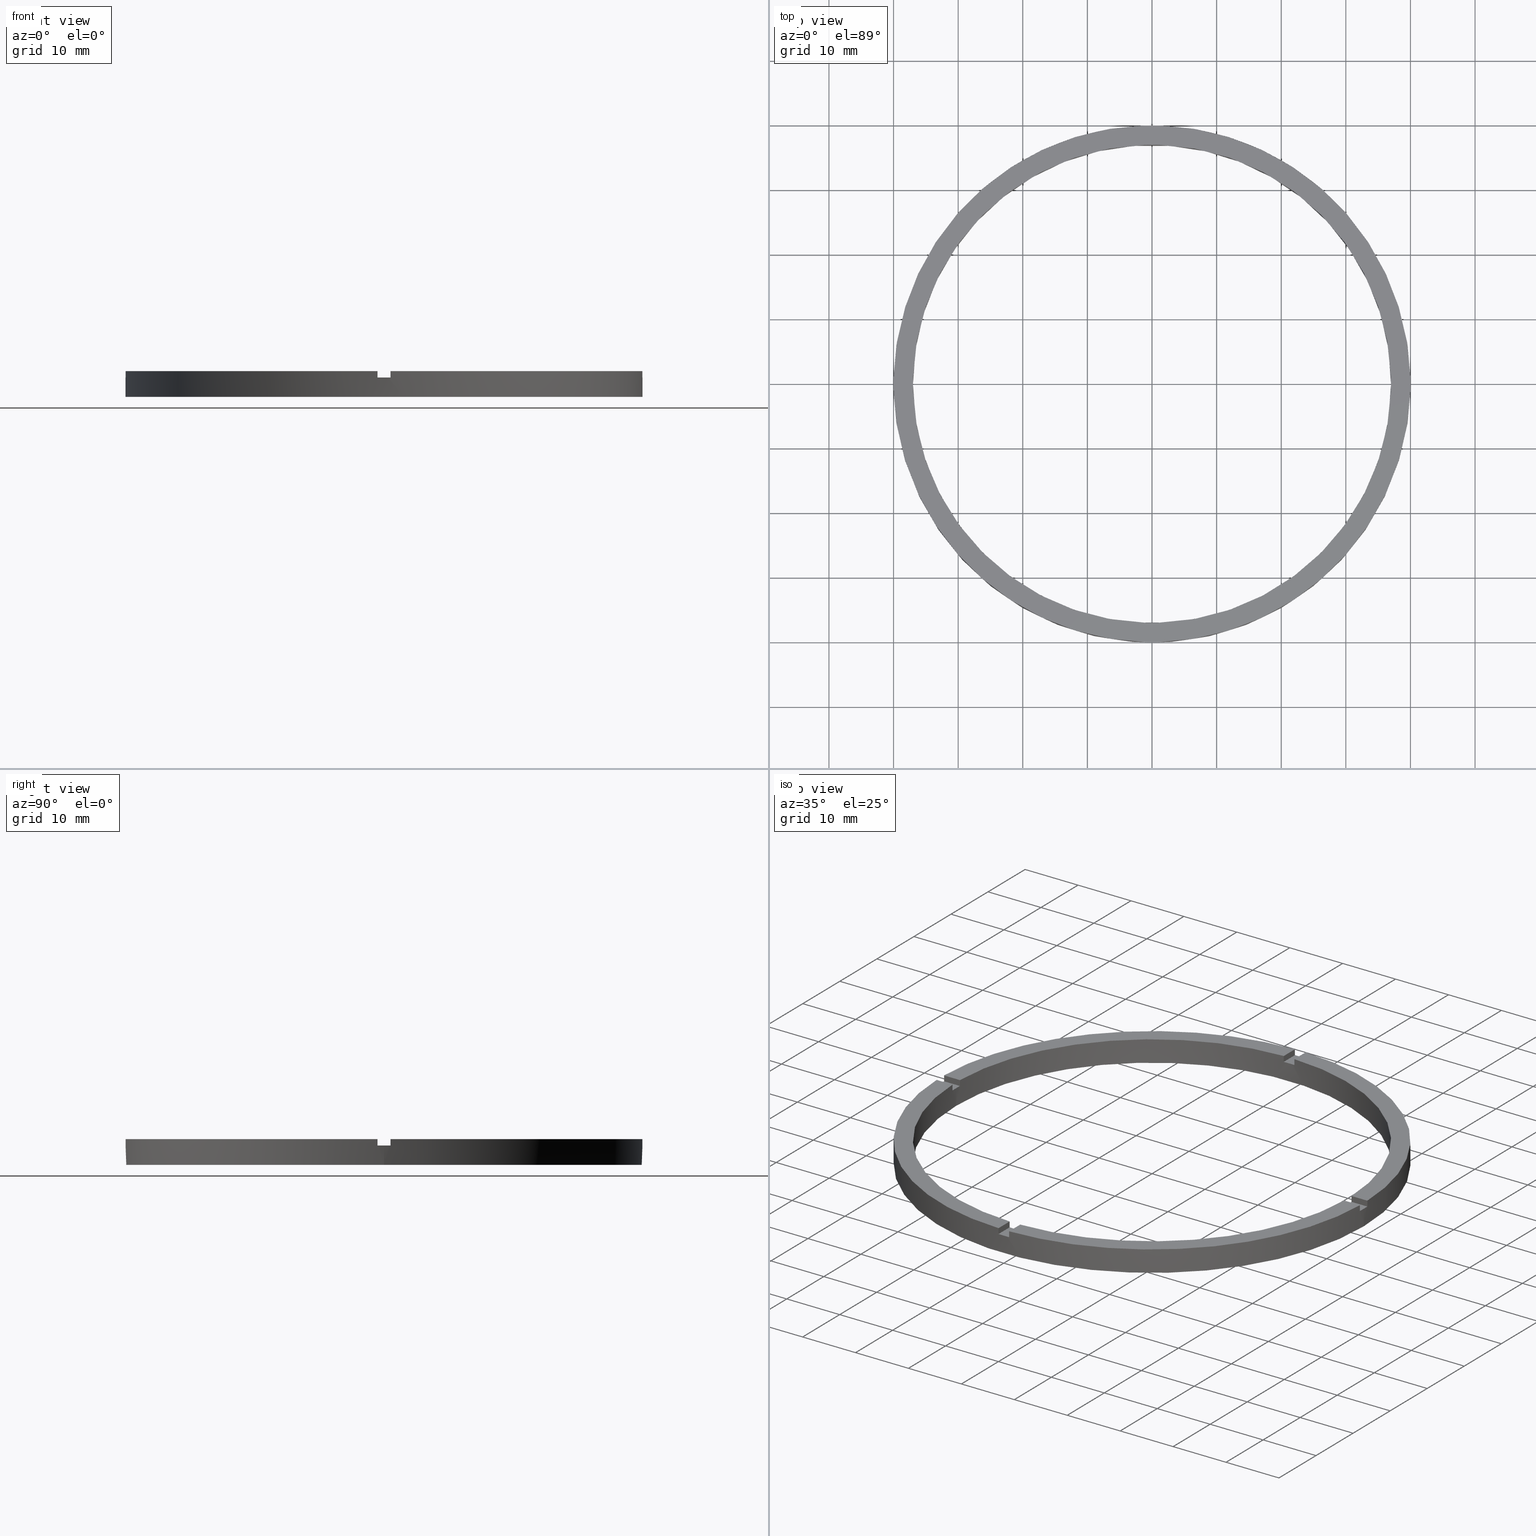
[diagram: canonical four-view strip — front | top / right | iso, engineering-drawing reading convention]
A machine part, canonical four-view strip (front | top / right | iso — engineering-drawing reading convention). The complete STEP part file that produces these views, byte-faithful:
ISO-10303-21;
HEADER;
FILE_DESCRIPTION (( 'STEP AP203' ),
    '1' );
FILE_NAME ('514164.step',
    '2024-12-26T02:43:45',
    ( 'MSI' ),
    ( '' ),
    'SwSTEP 2.0',
    'SolidWorks 2020',
    '' );
FILE_SCHEMA (( 'CONFIG_CONTROL_DESIGN' ));
ENDSEC;

DATA;
#1 = VECTOR ( 'NONE', #221, 1000.000000000000000 ) ;
#2 = AXIS2_PLACEMENT_3D ( 'NONE', #470, #280, #575 ) ;
#3 = SECURITY_CLASSIFICATION ( '', '', #547 ) ;
#4 = DIRECTION ( 'NONE',  ( -1.000000000000000000, 0.000000000000000000, 0.000000000000000000 ) ) ;
#5 = LINE ( 'NONE', #698, #540 ) ;
#6 = DIRECTION ( 'NONE',  ( 0.000000000000000000, 0.000000000000000000, 1.000000000000000000 ) ) ;
#7 = VECTOR ( 'NONE', #99, 1000.000000000000000 ) ;
#8 = VECTOR ( 'NONE', #17, 1000.000000000000000 ) ;
#9 = CARTESIAN_POINT ( 'NONE',  ( -30.00000000000018474, -1.000000000000026423, 3.000000000000000000 ) ) ;
#10 = CIRCLE ( 'NONE', #2, 37.00000000000000000 ) ;
#11 = CARTESIAN_POINT ( 'NONE',  ( 0.9999999999999744649, 30.00000000000000000, 3.000000000000000000 ) ) ;
#12 = CARTESIAN_POINT ( 'NONE',  ( 0.000000000000000000, 0.000000000000000000, 3.000000000000000000 ) ) ;
#13 = CIRCLE ( 'NONE', #508, 40.00000000000000000 ) ;
#14 = CARTESIAN_POINT ( 'NONE',  ( 0.000000000000000000, 0.000000000000000000, 4.000000000000000000 ) ) ;
#15 = VECTOR ( 'NONE', #477, 1000.000000000000000 ) ;
#16 = CARTESIAN_POINT ( 'NONE',  ( 0.000000000000000000, 0.000000000000000000, 3.000000000000000000 ) ) ;
#17 = DIRECTION ( 'NONE',  ( 0.000000000000000000, 0.000000000000000000, 1.000000000000000000 ) ) ;
#18 = VECTOR ( 'NONE', #246, 1000.000000000000000 ) ;
#19 = DIRECTION ( 'NONE',  ( 0.000000000000000000, 0.000000000000000000, 1.000000000000000000 ) ) ;
#20 = DIRECTION ( 'NONE',  ( 1.000000000000000000, 0.000000000000000000, 0.000000000000000000 ) ) ;
#21 = DIRECTION ( 'NONE',  ( 0.000000000000000000, 0.000000000000000000, 1.000000000000000000 ) ) ;
#22 = VERTEX_POINT ( 'NONE', #83 ) ;
#23 = LINE ( 'NONE', #57, #18 ) ;
#24 = EDGE_CURVE ( 'NONE', #635, #435, #291, .T. ) ;
#25 = ORIENTED_EDGE ( 'NONE', *, *, #43, .F. ) ;
#26 = CARTESIAN_POINT ( 'NONE',  ( 0.000000000000000000, 0.000000000000000000, 3.000000000000000000 ) ) ;
#27 = CARTESIAN_POINT ( 'NONE',  ( 0.000000000000000000, 0.000000000000000000, 3.000000000000000000 ) ) ;
#28 = CARTESIAN_POINT ( 'NONE',  ( 0.000000000000000000, 0.000000000000000000, 3.000000000000000000 ) ) ;
#29 = DIRECTION ( 'NONE',  ( 0.000000000000000000, 0.000000000000000000, 1.000000000000000000 ) ) ;
#30 = CIRCLE ( 'NONE', #532, 37.00000000000000000 ) ;
#31 = APPLICATION_CONTEXT ( 'configuration controlled 3d designs of mechanical parts and assemblies' ) ;
#32 = CARTESIAN_POINT ( 'NONE',  ( 0.9999999999999744649, 39.98749804626441318, 4.000000000000000000 ) ) ;
#33 = CARTESIAN_POINT ( 'NONE',  ( -1.000000000000025535, 36.98648401781385786, 4.000000000000000000 ) ) ;
#34 = EDGE_CURVE ( 'NONE', #22, #228, #775, .T. ) ;
#35 = AXIS2_PLACEMENT_3D ( 'NONE', #174, #38, #354 ) ;
#36 = ORIENTED_EDGE ( 'NONE', *, *, #211, .F. ) ;
#37 = PERSON_AND_ORGANIZATION_ROLE ( 'design_supplier' ) ;
#38 = DIRECTION ( 'NONE',  ( 0.000000000000000000, 0.000000000000000000, 1.000000000000000000 ) ) ;
#39 = DESIGN_CONTEXT ( 'detailed design', #31, 'design' ) ;
#40 = DIRECTION ( 'NONE',  ( -0.000000000000000000, -0.000000000000000000, -1.000000000000000000 ) ) ;
#41 = AXIS2_PLACEMENT_3D ( 'NONE', #704, #618, #119 ) ;
#42 = CC_DESIGN_APPROVAL ( #213, ( #3 ) ) ;
#43 = EDGE_CURVE ( 'NONE', #671, #459, #5, .T. ) ;
#44 = CC_DESIGN_PERSON_AND_ORGANIZATION_ASSIGNMENT ( #107, #178, ( #262 ) ) ;
#45 = ORIENTED_EDGE ( 'NONE', *, *, #393, .T. ) ;
#46 = VERTEX_POINT ( 'NONE', #318 ) ;
#47 = ORIENTED_EDGE ( 'NONE', *, *, #146, .F. ) ;
#48 = ORIENTED_EDGE ( 'NONE', *, *, #177, .F. ) ;
#49 = ADVANCED_FACE ( 'NONE', ( #271 ), #165, .F. ) ;
#50 = DIRECTION ( 'NONE',  ( -0.000000000000000000, -1.000000000000000000, -0.000000000000000000 ) ) ;
#51 = AXIS2_PLACEMENT_3D ( 'NONE', #93, #6, #63 ) ;
#52 = ORIENTED_EDGE ( 'NONE', *, *, #579, .F. ) ;
#53 = APPROVAL ( #173, 'δָ��' ) ;
#54 = EDGE_LOOP ( 'NONE', ( #656, #510 ) ) ;
#55 = ORIENTED_EDGE ( 'NONE', *, *, #654, .F. ) ;
#56 = VERTEX_POINT ( 'NONE', #746 ) ;
#57 = CARTESIAN_POINT ( 'NONE',  ( -39.98749804626441318, -1.000000000000028422, 4.000000000000000000 ) ) ;
#58 = EDGE_CURVE ( 'NONE', #600, #46, #281, .T. ) ;
#59 = ADVANCED_FACE ( 'NONE', ( #537 ), #545, .F. ) ;
#60 = DIRECTION ( 'NONE',  ( -0.000000000000000000, -0.000000000000000000, -1.000000000000000000 ) ) ;
#61 = DIRECTION ( 'NONE',  ( -1.000000000000000000, 0.000000000000000000, 0.000000000000000000 ) ) ;
#62 = CARTESIAN_POINT ( 'NONE',  ( 0.9999999999999744649, 39.98749804626441318, 3.000000000000000000 ) ) ;
#63 = DIRECTION ( 'NONE',  ( 1.000000000000000000, 0.000000000000000000, -0.000000000000000000 ) ) ;
#64 = DATE_AND_TIME ( #614, #703 ) ;
#65 = ORIENTED_EDGE ( 'NONE', *, *, #543, .F. ) ;
#66 = DIRECTION ( 'NONE',  ( 1.000000000000000000, 0.000000000000000000, 0.000000000000000000 ) ) ;
#67 = COORDINATED_UNIVERSAL_TIME_OFFSET ( 8, 0, .AHEAD. ) ;
#68 = CARTESIAN_POINT ( 'NONE',  ( 0.9999999999999744649, 36.98648401781385786, 3.000000000000000000 ) ) ;
#69 = DIRECTION ( 'NONE',  ( 0.000000000000000000, 0.000000000000000000, 1.000000000000000000 ) ) ;
#70 = EDGE_CURVE ( 'NONE', #137, #160, #294, .T. ) ;
#71 = DIRECTION ( 'NONE',  ( 0.000000000000000000, 0.000000000000000000, 1.000000000000000000 ) ) ;
#72 = AXIS2_PLACEMENT_3D ( 'NONE', #323, #472, #489 ) ;
#73 = VERTEX_POINT ( 'NONE', #530 ) ;
#74 = CARTESIAN_POINT ( 'NONE',  ( 0.000000000000000000, 0.000000000000000000, 3.000000000000000000 ) ) ;
#75 = ORIENTED_EDGE ( 'NONE', *, *, #273, .T. ) ;
#76 = CALENDAR_DATE ( 2024, 26, 12 ) ;
#77 = ORIENTED_EDGE ( 'NONE', *, *, #24, .F. ) ;
#78 = PLANE ( 'NONE',  #315 ) ;
#79 = APPROVAL_DATE_TIME ( #597, #213 ) ;
#80 = SHAPE_DEFINITION_REPRESENTATION ( #781, #591 ) ;
#81 = EDGE_LOOP ( 'NONE', ( #343, #711, #25, #426 ) ) ;
#82 = DIRECTION ( 'NONE',  ( 6.505213034913025371E-17, -1.000000000000000000, 0.000000000000000000 ) ) ;
#83 = CARTESIAN_POINT ( 'NONE',  ( 39.98749804626441318, 0.9999999999998430145, 3.000000000000000000 ) ) ;
#84 = CLOSED_SHELL ( 'NONE', ( #185, #123, #116, #599, #312, #313, #385, #733, #59, #767, #245, #442, #506, #293, #719, #650, #49, #727, #135, #253, #189 ) ) ;
#85 = FACE_OUTER_BOUND ( 'NONE', #458, .T. ) ;
#86 = ORIENTED_EDGE ( 'NONE', *, *, #587, .F. ) ;
#87 = CARTESIAN_POINT ( 'NONE',  ( -1.000000000000159206, -39.98749804626440607, 4.000000000000000000 ) ) ;
#88 = CC_DESIGN_PERSON_AND_ORGANIZATION_ASSIGNMENT ( #712, #105, ( #534 ) ) ;
#89 = CARTESIAN_POINT ( 'NONE',  ( -40.00000000000000000, 0.000000000000000000, 4.000000000000000000 ) ) ;
#90 = EDGE_LOOP ( 'NONE', ( #647, #392, #337, #407 ) ) ;
#91 = ORIENTED_EDGE ( 'NONE', *, *, #117, .F. ) ;
#92 = VECTOR ( 'NONE', #346, 1000.000000000000000 ) ;
#93 = CARTESIAN_POINT ( 'NONE',  ( 0.000000000000000000, 0.000000000000000000, 4.000000000000000000 ) ) ;
#94 = CARTESIAN_POINT ( 'NONE',  ( -30.00000000000018474, -1.000000000000026423, 3.000000000000000000 ) ) ;
#95 = DIRECTION ( 'NONE',  ( -0.000000000000000000, -0.000000000000000000, -1.000000000000000000 ) ) ;
#96 = CIRCLE ( 'NONE', #655, 40.00000000000000000 ) ;
#97 = PERSON_AND_ORGANIZATION ( #406, #375 ) ;
#98 = LOCAL_TIME ( 10, 43, 45.00000000000000000, #611 ) ;
#99 = DIRECTION ( 'NONE',  ( -0.000000000000000000, -0.000000000000000000, -1.000000000000000000 ) ) ;
#100 = EDGE_CURVE ( 'NONE', #203, #660, #267, .T. ) ;
#101 = EDGE_CURVE ( 'NONE', #598, #203, #776, .T. ) ;
#102 = PERSON_AND_ORGANIZATION ( #406, #375 ) ;
#103 = VECTOR ( 'NONE', #151, 1000.000000000000000 ) ;
#104 = CIRCLE ( 'NONE', #627, 40.00000000000000000 ) ;
#105 = PERSON_AND_ORGANIZATION_ROLE ( 'creator' ) ;
#106 = CARTESIAN_POINT ( 'NONE',  ( -36.98648401781385786, -1.000000000000027756, 3.000000000000000000 ) ) ;
#107 = PERSON_AND_ORGANIZATION ( #406, #375 ) ;
#108 = CIRCLE ( 'NONE', #248, 37.00000000000000000 ) ;
#109 = DATE_AND_TIME ( #369, #98 ) ;
#110 = DIRECTION ( 'NONE',  ( 1.000000000000000000, 0.000000000000000000, 0.000000000000000000 ) ) ;
#111 = VECTOR ( 'NONE', #144, 1000.000000000000000 ) ;
#112 = APPROVAL_STATUS ( 'not_yet_approved' ) ;
#113 = CARTESIAN_POINT ( 'NONE',  ( -1.000000000000159650, -36.98648401781385076, 3.000000000000000000 ) ) ;
#114 = CARTESIAN_POINT ( 'NONE',  ( 0.9999999999999744649, 36.98648401781385786, 4.000000000000000000 ) ) ;
#115 = EDGE_LOOP ( 'NONE', ( #501, #155, #350, #486, #219, #677, #171, #455, #164, #366, #723, #594 ) ) ;
#116 = ADVANCED_FACE ( 'NONE', ( #546 ), #338, .T. ) ;
#117 = EDGE_CURVE ( 'NONE', #383, #673, #10, .T. ) ;
#118 = ORIENTED_EDGE ( 'NONE', *, *, #639, .T. ) ;
#119 = DIRECTION ( 'NONE',  ( 1.000000000000000000, 0.000000000000000000, -0.000000000000000000 ) ) ;
#120 = ORIENTED_EDGE ( 'NONE', *, *, #240, .F. ) ;
#121 = ORIENTED_EDGE ( 'NONE', *, *, #706, .F. ) ;
#122 = DIRECTION ( 'NONE',  ( 0.000000000000000000, 0.000000000000000000, 1.000000000000000000 ) ) ;
#123 = ADVANCED_FACE ( 'NONE', ( #780 ), #282, .T. ) ;
#124 = CARTESIAN_POINT ( 'NONE',  ( -30.00000000000018474, 0.9999999999999735767, 3.000000000000000000 ) ) ;
#125 = ORIENTED_EDGE ( 'NONE', *, *, #663, .F. ) ;
#126 = ORIENTED_EDGE ( 'NONE', *, *, #519, .T. ) ;
#127 = AXIS2_PLACEMENT_3D ( 'NONE', #218, #329, #209 ) ;
#128 = ORIENTED_EDGE ( 'NONE', *, *, #24, .T. ) ;
#129 = EDGE_CURVE ( 'NONE', #160, #459, #782, .T. ) ;
#130 = DIRECTION ( 'NONE',  ( 0.000000000000000000, 0.000000000000000000, 1.000000000000000000 ) ) ;
#131 = FACE_OUTER_BOUND ( 'NONE', #356, .T. ) ;
#132 = VECTOR ( 'NONE', #464, 1000.000000000000000 ) ;
#133 = ORIENTED_EDGE ( 'NONE', *, *, #310, .T. ) ;
#134 = VERTEX_POINT ( 'NONE', #176 ) ;
#135 = ADVANCED_FACE ( 'NONE', ( #277 ), #443, .F. ) ;
#136 = VECTOR ( 'NONE', #376, 1000.000000000000000 ) ;
#137 = VERTEX_POINT ( 'NONE', #648 ) ;
#138 = FACE_OUTER_BOUND ( 'NONE', #441, .T. ) ;
#139 = DIRECTION ( 'NONE',  ( -1.000000000000000000, -1.951563910473907735E-16, 0.000000000000000000 ) ) ;
#140 = DIRECTION ( 'NONE',  ( 0.000000000000000000, 0.000000000000000000, 1.000000000000000000 ) ) ;
#141 = ORIENTED_EDGE ( 'NONE', *, *, #34, .T. ) ;
#142 = FACE_BOUND ( 'NONE', #738, .T. ) ;
#143 = DIRECTION ( 'NONE',  ( 1.000000000000000000, 1.951563910473907735E-16, 0.000000000000000000 ) ) ;
#144 = DIRECTION ( 'NONE',  ( -0.000000000000000000, -0.000000000000000000, -1.000000000000000000 ) ) ;
#145 = AXIS2_PLACEMENT_3D ( 'NONE', #757, #82, #220 ) ;
#146 = EDGE_CURVE ( 'NONE', #657, #199, #541, .T. ) ;
#147 = CARTESIAN_POINT ( 'NONE',  ( 0.000000000000000000, 0.000000000000000000, 4.000000000000000000 ) ) ;
#148 = DIRECTION ( 'NONE',  ( -1.000000000000000000, -6.505213034913025371E-17, -0.000000000000000000 ) ) ;
#149 = LINE ( 'NONE', #726, #162 ) ;
#150 = ORIENTED_EDGE ( 'NONE', *, *, #181, .F. ) ;
#151 = DIRECTION ( 'NONE',  ( -1.000000000000000000, -1.951563910473907735E-16, 0.000000000000000000 ) ) ;
#152 = CARTESIAN_POINT ( 'NONE',  ( 0.000000000000000000, 0.000000000000000000, 4.000000000000000000 ) ) ;
#153 = DIRECTION ( 'NONE',  ( 1.000000000000000000, 0.000000000000000000, 0.000000000000000000 ) ) ;
#154 = CARTESIAN_POINT ( 'NONE',  ( -36.98648401781385786, 0.9999999999999722444, 4.000000000000000000 ) ) ;
#155 = ORIENTED_EDGE ( 'NONE', *, *, #771, .T. ) ;
#156 = PLANE ( 'NONE',  #35 ) ;
#157 = EDGE_CURVE ( 'NONE', #172, #134, #542, .T. ) ;
#158 = LINE ( 'NONE', #428, #132 ) ;
#159 = AXIS2_PLACEMENT_3D ( 'NONE', #217, #528, #754 ) ;
#160 = VERTEX_POINT ( 'NONE', #741 ) ;
#161 = CARTESIAN_POINT ( 'NONE',  ( 37.00000000000000000, 4.531193156845206793E-15, 0.000000000000000000 ) ) ;
#162 = VECTOR ( 'NONE', #297, 1000.000000000000000 ) ;
#163 = DIRECTION ( 'NONE',  ( 1.000000000000000000, 1.301042606982605074E-16, 0.000000000000000000 ) ) ;
#164 = ORIENTED_EDGE ( 'NONE', *, *, #571, .F. ) ;
#165 = PLANE ( 'NONE',  #145 ) ;
#166 = DIRECTION ( 'NONE',  ( 1.000000000000000000, 1.951563910473907735E-16, -0.000000000000000000 ) ) ;
#167 = AXIS2_PLACEMENT_3D ( 'NONE', #713, #513, #732 ) ;
#168 = ORIENTED_EDGE ( 'NONE', *, *, #601, .T. ) ;
#169 = DIRECTION ( 'NONE',  ( 0.000000000000000000, 0.000000000000000000, 1.000000000000000000 ) ) ;
#170 = CIRCLE ( 'NONE', #603, 37.00000000000000000 ) ;
#171 = ORIENTED_EDGE ( 'NONE', *, *, #601, .F. ) ;
#172 = VERTEX_POINT ( 'NONE', #745 ) ;
#173 = APPROVAL_STATUS ( 'not_yet_approved' ) ;
#174 = CARTESIAN_POINT ( 'NONE',  ( 0.000000000000000000, 0.000000000000000000, 4.000000000000000000 ) ) ;
#175 = VECTOR ( 'NONE', #565, 1000.000000000000000 ) ;
#176 = CARTESIAN_POINT ( 'NONE',  ( 39.98749804626440607, -1.000000000000156986, 4.000000000000000000 ) ) ;
#177 = EDGE_CURVE ( 'NONE', #490, #608, #287, .T. ) ;
#178 = PERSON_AND_ORGANIZATION_ROLE ( 'design_owner' ) ;
#179 = CARTESIAN_POINT ( 'NONE',  ( 0.000000000000000000, 0.000000000000000000, 0.000000000000000000 ) ) ;
#180 = EDGE_CURVE ( 'NONE', #657, #731, #548, .T. ) ;
#181 = EDGE_CURVE ( 'NONE', #598, #608, #288, .T. ) ;
#182 = CARTESIAN_POINT ( 'NONE',  ( 0.000000000000000000, 0.000000000000000000, 3.000000000000000000 ) ) ;
#183 = EDGE_CURVE ( 'NONE', #482, #22, #13, .T. ) ;
#184 = AXIS2_PLACEMENT_3D ( 'NONE', #689, #401, #692 ) ;
#185 = ADVANCED_FACE ( 'NONE', ( #551 ), #305, .F. ) ;
#186 = CALENDAR_DATE ( 2024, 26, 12 ) ;
#187 = ORIENTED_EDGE ( 'NONE', *, *, #515, .T. ) ;
#188 = APPROVAL_DATE_TIME ( #485, #53 ) ;
#189 = ADVANCED_FACE ( 'NONE', ( #309 ), #202, .T. ) ;
#190 = ORIENTED_EDGE ( 'NONE', *, *, #579, .T. ) ;
#191 = CALENDAR_DATE ( 2024, 26, 12 ) ;
#192 = ORIENTED_EDGE ( 'NONE', *, *, #772, .T. ) ;
#193 = APPROVAL_PERSON_ORGANIZATION ( #710, #53, #538 ) ;
#194 = AXIS2_PLACEMENT_3D ( 'NONE', #124, #445, #139 ) ;
#195 = CC_DESIGN_DATE_AND_TIME_ASSIGNMENT ( #64, #353, ( #3 ) ) ;
#196 = APPROVAL ( #112, 'δָ��' ) ;
#197 = ORIENTED_EDGE ( 'NONE', *, *, #602, .F. ) ;
#198 = COORDINATED_UNIVERSAL_TIME_OFFSET ( 8, 0, .AHEAD. ) ;
#199 = VERTEX_POINT ( 'NONE', #259 ) ;
#200 = PERSON_AND_ORGANIZATION ( #406, #375 ) ;
#201 = DIRECTION ( 'NONE',  ( 1.000000000000000000, 0.000000000000000000, 0.000000000000000000 ) ) ;
#202 = PLANE ( 'NONE',  #41 ) ;
#203 = VERTEX_POINT ( 'NONE', #317 ) ;
#204 = DIRECTION ( 'NONE',  ( -1.000000000000000000, 0.000000000000000000, 0.000000000000000000 ) ) ;
#205 = ORIENTED_EDGE ( 'NONE', *, *, #669, .T. ) ;
#206 = EDGE_LOOP ( 'NONE', ( #419, #341, #128, #197 ) ) ;
#207 = DIRECTION ( 'NONE',  ( -0.000000000000000000, -0.000000000000000000, -1.000000000000000000 ) ) ;
#208 = DIRECTION ( 'NONE',  ( 0.000000000000000000, 0.000000000000000000, 1.000000000000000000 ) ) ;
#209 = DIRECTION ( 'NONE',  ( 1.000000000000000000, 0.000000000000000000, 0.000000000000000000 ) ) ;
#210 = ORIENTED_EDGE ( 'NONE', *, *, #499, .F. ) ;
#211 = EDGE_CURVE ( 'NONE', #388, #199, #30, .T. ) ;
#212 = DIRECTION ( 'NONE',  ( 0.000000000000000000, 0.000000000000000000, 1.000000000000000000 ) ) ;
#213 = APPROVAL ( #716, 'δָ��' ) ;
#214 = ORIENTED_EDGE ( 'NONE', *, *, #58, .F. ) ;
#215 = DIRECTION ( 'NONE',  ( 1.000000000000000000, 0.000000000000000000, -0.000000000000000000 ) ) ;
#216 = ORIENTED_EDGE ( 'NONE', *, *, #157, .T. ) ;
#217 = CARTESIAN_POINT ( 'NONE',  ( 0.000000000000000000, 0.000000000000000000, 3.000000000000000000 ) ) ;
#218 = CARTESIAN_POINT ( 'NONE',  ( 0.000000000000000000, 0.000000000000000000, 3.000000000000000000 ) ) ;
#219 = ORIENTED_EDGE ( 'NONE', *, *, #299, .F. ) ;
#220 = DIRECTION ( 'NONE',  ( 1.000000000000000000, 6.505213034913025371E-17, 0.000000000000000000 ) ) ;
#221 = DIRECTION ( 'NONE',  ( 0.000000000000000000, 1.000000000000000000, 0.000000000000000000 ) ) ;
#222 = ORIENTED_EDGE ( 'NONE', *, *, #177, .T. ) ;
#223 = CARTESIAN_POINT ( 'NONE',  ( -30.00000000000018474, -1.000000000000026423, 4.000000000000000000 ) ) ;
#224 = VERTEX_POINT ( 'NONE', #606 ) ;
#225 = DIRECTION ( 'NONE',  ( -1.301042606982605074E-16, 1.000000000000000000, 0.000000000000000000 ) ) ;
#226 = EDGE_CURVE ( 'NONE', #137, #134, #560, .T. ) ;
#227 = EDGE_CURVE ( 'NONE', #137, #671, #553, .T. ) ;
#228 = VERTEX_POINT ( 'NONE', #783 ) ;
#229 = ORIENTED_EDGE ( 'NONE', *, *, #772, .F. ) ;
#230 = ORIENTED_EDGE ( 'NONE', *, *, #748, .F. ) ;
#231 = DIRECTION ( 'NONE',  ( -0.000000000000000000, -0.000000000000000000, -1.000000000000000000 ) ) ;
#232 = ORIENTED_EDGE ( 'NONE', *, *, #101, .T. ) ;
#233 = DIRECTION ( 'NONE',  ( 0.000000000000000000, -0.000000000000000000, 1.000000000000000000 ) ) ;
#234 = ORIENTED_EDGE ( 'NONE', *, *, #461, .T. ) ;
#235 = PRODUCT_RELATED_PRODUCT_CATEGORY ( 'detail', '', ( #262 ) ) ;
#236 = DIRECTION ( 'NONE',  ( -1.000000000000000000, 0.000000000000000000, 0.000000000000000000 ) ) ;
#237 = MECHANICAL_CONTEXT ( 'NONE', #701, 'mechanical' ) ;
#238 = CARTESIAN_POINT ( 'NONE',  ( 29.99999999999999289, -1.000000000000157652, 4.000000000000000000 ) ) ;
#239 = DIRECTION ( 'NONE',  ( 1.000000000000000000, 0.000000000000000000, 0.000000000000000000 ) ) ;
#240 = EDGE_CURVE ( 'NONE', #364, #626, #23, .T. ) ;
#241 = AXIS2_PLACEMENT_3D ( 'NONE', #16, #233, #347 ) ;
#242 = DATE_TIME_ROLE ( 'creation_date' ) ;
#243 = CARTESIAN_POINT ( 'NONE',  ( -37.00000000000000000, 0.000000000000000000, 0.000000000000000000 ) ) ;
#244 = DIRECTION ( 'NONE',  ( 0.000000000000000000, 0.000000000000000000, 1.000000000000000000 ) ) ;
#245 = ADVANCED_FACE ( 'NONE', ( #518 ), #544, .F. ) ;
#246 = DIRECTION ( 'NONE',  ( -0.000000000000000000, -0.000000000000000000, -1.000000000000000000 ) ) ;
#247 = CC_DESIGN_PERSON_AND_ORGANIZATION_ASSIGNMENT ( #479, #296, ( #556 ) ) ;
#248 = AXIS2_PLACEMENT_3D ( 'NONE', #576, #688, #400 ) ;
#249 = DIRECTION ( 'NONE',  ( 1.000000000000000000, 0.000000000000000000, -0.000000000000000000 ) ) ;
#250 = CARTESIAN_POINT ( 'NONE',  ( -36.98648401781385786, 0.9999999999999722444, 3.000000000000000000 ) ) ;
#251 = FACE_OUTER_BOUND ( 'NONE', #408, .T. ) ;
#252 = AXIS2_PLACEMENT_3D ( 'NONE', #742, #212, #535 ) ;
#253 = ADVANCED_FACE ( 'NONE', ( #756 ), #466, .F. ) ;
#254 = VECTOR ( 'NONE', #370, 1000.000000000000000 ) ;
#255 = EDGE_CURVE ( 'NONE', #172, #482, #766, .T. ) ;
#256 = FACE_OUTER_BOUND ( 'NONE', #734, .T. ) ;
#257 = DIRECTION ( 'NONE',  ( 0.000000000000000000, 0.000000000000000000, 1.000000000000000000 ) ) ;
#258 = CARTESIAN_POINT ( 'NONE',  ( 0.000000000000000000, 0.000000000000000000, 4.000000000000000000 ) ) ;
#259 = CARTESIAN_POINT ( 'NONE',  ( -1.000000000000025535, 36.98648401781385786, 3.000000000000000000 ) ) ;
#260 = EDGE_CURVE ( 'NONE', #56, #626, #759, .T. ) ;
#261 = CARTESIAN_POINT ( 'NONE',  ( 29.99999999999999289, 0.9999999999998423483, 4.000000000000000000 ) ) ;
#262 = PRODUCT ( '514164', '514164', '', ( #237 ) ) ;
#263 = CARTESIAN_POINT ( 'NONE',  ( -36.98648401781385786, -1.000000000000027756, 4.000000000000000000 ) ) ;
#264 = DIRECTION ( 'NONE',  ( 1.000000000000000000, 0.000000000000000000, -0.000000000000000000 ) ) ;
#265 = DIRECTION ( 'NONE',  ( -0.000000000000000000, -0.000000000000000000, -1.000000000000000000 ) ) ;
#266 = CARTESIAN_POINT ( 'NONE',  ( 0.000000000000000000, 0.000000000000000000, 4.000000000000000000 ) ) ;
#267 = LINE ( 'NONE', #274, #552 ) ;
#268 = CARTESIAN_POINT ( 'NONE',  ( 39.98749804626441318, 0.9999999999998430145, 4.000000000000000000 ) ) ;
#269 = CARTESIAN_POINT ( 'NONE',  ( 0.000000000000000000, 0.000000000000000000, 0.000000000000000000 ) ) ;
#270 = CARTESIAN_POINT ( 'NONE',  ( 0.000000000000000000, 0.000000000000000000, 4.000000000000000000 ) ) ;
#271 = FACE_OUTER_BOUND ( 'NONE', #90, .T. ) ;
#272 = DIRECTION ( 'NONE',  ( 1.000000000000000000, 0.000000000000000000, 0.000000000000000000 ) ) ;
#273 = EDGE_CURVE ( 'NONE', #160, #449, #752, .T. ) ;
#274 = CARTESIAN_POINT ( 'NONE',  ( -1.000000000000160538, -30.00000000000017764, 4.000000000000000000 ) ) ;
#275 = AXIS2_PLACEMENT_3D ( 'NONE', #26, #19, #66 ) ;
#276 = VECTOR ( 'NONE', #357, 1000.000000000000000 ) ;
#277 = FACE_OUTER_BOUND ( 'NONE', #398, .T. ) ;
#278 = CARTESIAN_POINT ( 'NONE',  ( 0.000000000000000000, 0.000000000000000000, 3.000000000000000000 ) ) ;
#279 = CARTESIAN_POINT ( 'NONE',  ( -37.00000000000000000, 0.000000000000000000, 3.000000000000000000 ) ) ;
#280 = DIRECTION ( 'NONE',  ( 0.000000000000000000, 0.000000000000000000, 1.000000000000000000 ) ) ;
#281 = CIRCLE ( 'NONE', #285, 37.00000000000000000 ) ;
#282 = CYLINDRICAL_SURFACE ( 'NONE', #577, 40.00000000000000000 ) ;
#283 = CARTESIAN_POINT ( 'NONE',  ( -1.000000000000160538, -30.00000000000017764, 3.000000000000000000 ) ) ;
#284 = DIRECTION ( 'NONE',  ( 1.000000000000000000, 0.000000000000000000, 0.000000000000000000 ) ) ;
#285 = AXIS2_PLACEMENT_3D ( 'NONE', #74, #140, #558 ) ;
#286 = EDGE_CURVE ( 'NONE', #493, #657, #524, .T. ) ;
#287 = CIRCLE ( 'NONE', #127, 37.00000000000000000 ) ;
#288 = LINE ( 'NONE', #684, #289 ) ;
#289 = VECTOR ( 'NONE', #265, 1000.000000000000000 ) ;
#290 = DIRECTION ( 'NONE',  ( 0.000000000000000000, 0.000000000000000000, 1.000000000000000000 ) ) ;
#291 = LINE ( 'NONE', #747, #1 ) ;
#292 = CARTESIAN_POINT ( 'NONE',  ( -1.000000000000025535, 30.00000000000000000, 3.000000000000000000 ) ) ;
#293 = ADVANCED_FACE ( 'NONE', ( #251 ), #665, .F. ) ;
#294 = LINE ( 'NONE', #679, #549 ) ;
#295 = DIRECTION ( 'NONE',  ( -0.000000000000000000, -0.000000000000000000, -1.000000000000000000 ) ) ;
#296 = PERSON_AND_ORGANIZATION_ROLE ( 'creator' ) ;
#297 = DIRECTION ( 'NONE',  ( -1.000000000000000000, -1.951563910473907735E-16, 0.000000000000000000 ) ) ;
#298 = DIRECTION ( 'NONE',  ( 1.000000000000000000, 0.000000000000000000, 0.000000000000000000 ) ) ;
#299 = EDGE_CURVE ( 'NONE', #358, #56, #773, .T. ) ;
#300 = AXIS2_PLACEMENT_3D ( 'NONE', #616, #163, #225 ) ;
#301 = VERTEX_POINT ( 'NONE', #690 ) ;
#302 = VECTOR ( 'NONE', #295, 1000.000000000000000 ) ;
#303 = ORIENTED_EDGE ( 'NONE', *, *, #227, .T. ) ;
#304 = CARTESIAN_POINT ( 'NONE',  ( -39.98749804626441318, 0.9999999999999715783, 3.000000000000000000 ) ) ;
#305 = CYLINDRICAL_SURFACE ( 'NONE', #662, 37.00000000000000000 ) ;
#306 = ORIENTED_EDGE ( 'NONE', *, *, #286, .T. ) ;
#307 = AXIS2_PLACEMENT_3D ( 'NONE', #469, #410, #272 ) ;
#308 = CARTESIAN_POINT ( 'NONE',  ( 0.9999999999998409050, -39.98749804626441318, 4.000000000000000000 ) ) ;
#309 = FACE_OUTER_BOUND ( 'NONE', #423, .T. ) ;
#310 = EDGE_CURVE ( 'NONE', #725, #199, #526, .T. ) ;
#311 = DIRECTION ( 'NONE',  ( 1.000000000000000000, 6.505213034913025371E-17, 0.000000000000000000 ) ) ;
#312 = ADVANCED_FACE ( 'NONE', ( #768 ), #517, .T. ) ;
#313 = ADVANCED_FACE ( 'NONE', ( #256 ), #328, .T. ) ;
#314 = EDGE_CURVE ( 'NONE', #600, #449, #429, .T. ) ;
#315 = AXIS2_PLACEMENT_3D ( 'NONE', #462, #416, #523 ) ;
#316 = ORIENTED_EDGE ( 'NONE', *, *, #571, .T. ) ;
#317 = CARTESIAN_POINT ( 'NONE',  ( -1.000000000000159650, -36.98648401781385076, 4.000000000000000000 ) ) ;
#318 = CARTESIAN_POINT ( 'NONE',  ( 37.00000000000000000, 4.531193156845206793E-15, 3.000000000000000000 ) ) ;
#319 = ORIENTED_EDGE ( 'NONE', *, *, #43, .T. ) ;
#320 = EDGE_CURVE ( 'NONE', #731, #224, #149, .T. ) ;
#321 = EDGE_CURVE ( 'NONE', #449, #134, #434, .T. ) ;
#322 = ORIENTED_EDGE ( 'NONE', *, *, #543, .T. ) ;
#323 = CARTESIAN_POINT ( 'NONE',  ( 0.000000000000000000, 0.000000000000000000, 3.000000000000000000 ) ) ;
#324 = CARTESIAN_POINT ( 'NONE',  ( 0.000000000000000000, 0.000000000000000000, 3.000000000000000000 ) ) ;
#325 = ORIENTED_EDGE ( 'NONE', *, *, #255, .T. ) ;
#326 =( NAMED_UNIT ( * ) PLANE_ANGLE_UNIT ( ) SI_UNIT ( $, .RADIAN. ) );
#327 = ORIENTED_EDGE ( 'NONE', *, *, #748, .T. ) ;
#328 = PLANE ( 'NONE',  #500 ) ;
#329 = DIRECTION ( 'NONE',  ( 0.000000000000000000, 0.000000000000000000, 1.000000000000000000 ) ) ;
#330 = EDGE_LOOP ( 'NONE', ( #511, #168, #359, #491 ) ) ;
#331 = DIRECTION ( 'NONE',  ( -1.000000000000000000, 0.000000000000000000, 0.000000000000000000 ) ) ;
#332 = AXIS2_PLACEMENT_3D ( 'NONE', #269, #257, #284 ) ;
#333 = DIRECTION ( 'NONE',  ( 1.000000000000000000, 0.000000000000000000, 0.000000000000000000 ) ) ;
#334 = ORIENTED_EDGE ( 'NONE', *, *, #101, .F. ) ;
#335 = CARTESIAN_POINT ( 'NONE',  ( 0.9999999999998404610, -36.98648401781386497, 3.000000000000000000 ) ) ;
#336 = MANIFOLD_SOLID_BREP ( '�г�-����1', #84 ) ;
#337 = ORIENTED_EDGE ( 'NONE', *, *, #321, .T. ) ;
#338 = PLANE ( 'NONE',  #51 ) ;
#339 = EDGE_LOOP ( 'NONE', ( #505, #590, #730, #574 ) ) ;
#340 = DIRECTION ( 'NONE',  ( 1.000000000000000000, 1.951563910473907735E-16, -0.000000000000000000 ) ) ;
#341 = ORIENTED_EDGE ( 'NONE', *, *, #345, .T. ) ;
#342 = AXIS2_PLACEMENT_3D ( 'NONE', #292, #236, #29 ) ;
#343 = ORIENTED_EDGE ( 'NONE', *, *, #70, .T. ) ;
#344 = CC_DESIGN_SECURITY_CLASSIFICATION ( #3, ( #556 ) ) ;
#345 = EDGE_CURVE ( 'NONE', #388, #635, #659, .T. ) ;
#346 = DIRECTION ( 'NONE',  ( 1.301042606982605074E-16, -1.000000000000000000, 0.000000000000000000 ) ) ;
#347 = DIRECTION ( 'NONE',  ( 1.000000000000000000, 0.000000000000000000, 0.000000000000000000 ) ) ;
#348 = ORIENTED_EDGE ( 'NONE', *, *, #260, .T. ) ;
#349 = ORIENTED_EDGE ( 'NONE', *, *, #465, .F. ) ;
#350 = ORIENTED_EDGE ( 'NONE', *, *, #424, .T. ) ;
#351 = APPLICATION_PROTOCOL_DEFINITION ( 'international standard', 'config_control_design', 1994, #31 ) ;
#352 = VERTEX_POINT ( 'NONE', #250 ) ;
#353 = DATE_TIME_ROLE ( 'classification_date' ) ;
#354 = DIRECTION ( 'NONE',  ( 1.000000000000000000, 0.000000000000000000, -0.000000000000000000 ) ) ;
#355 = APPROVAL_PERSON_ORGANIZATION ( #102, #213, #368 ) ;
#356 = EDGE_LOOP ( 'NONE', ( #77, #680, #492, #234 ) ) ;
#357 = DIRECTION ( 'NONE',  ( -0.000000000000000000, -0.000000000000000000, -1.000000000000000000 ) ) ;
#358 = VERTEX_POINT ( 'NONE', #304 ) ;
#359 = ORIENTED_EDGE ( 'NONE', *, *, #320, .F. ) ;
#360 = CARTESIAN_POINT ( 'NONE',  ( 0.000000000000000000, 0.000000000000000000, 0.000000000000000000 ) ) ;
#361 = VERTEX_POINT ( 'NONE', #113 ) ;
#362 = VECTOR ( 'NONE', #630, 1000.000000000000000 ) ;
#363 = CARTESIAN_POINT ( 'NONE',  ( 0.000000000000000000, 0.000000000000000000, 3.000000000000000000 ) ) ;
#364 = VERTEX_POINT ( 'NONE', #589 ) ;
#365 = ORIENTED_EDGE ( 'NONE', *, *, #58, .T. ) ;
#366 = ORIENTED_EDGE ( 'NONE', *, *, #602, .T. ) ;
#367 = LINE ( 'NONE', #94, #609 ) ;
#368 = APPROVAL_ROLE ( '' ) ;
#369 = CALENDAR_DATE ( 2024, 26, 12 ) ;
#370 = DIRECTION ( 'NONE',  ( -0.000000000000000000, -1.000000000000000000, -0.000000000000000000 ) ) ;
#371 = CYLINDRICAL_SURFACE ( 'NONE', #694, 40.00000000000000000 ) ;
#372 = LINE ( 'NONE', #32, #395 ) ;
#373 = CIRCLE ( 'NONE', #275, 37.00000000000000000 ) ;
#374 = CIRCLE ( 'NONE', #381, 40.00000000000000000 ) ;
#375 = ORGANIZATION ( 'δָ��', 'δָ��', '' ) ;
#376 = DIRECTION ( 'NONE',  ( 0.000000000000000000, 0.000000000000000000, 1.000000000000000000 ) ) ;
#377 = LINE ( 'NONE', #760, #397 ) ;
#378 = LINE ( 'NONE', #572, #362 ) ;
#379 = EDGE_CURVE ( 'NONE', #600, #172, #670, .T. ) ;
#380 = APPROVAL_PERSON_ORGANIZATION ( #97, #196, #651 ) ;
#381 = AXIS2_PLACEMENT_3D ( 'NONE', #363, #448, #521 ) ;
#382 = LINE ( 'NONE', #223, #643 ) ;
#383 = VERTEX_POINT ( 'NONE', #243 ) ;
#384 = FACE_OUTER_BOUND ( 'NONE', #629, .T. ) ;
#385 = ADVANCED_FACE ( 'NONE', ( #666, #142 ), #578, .F. ) ;
#386 = FACE_OUTER_BOUND ( 'NONE', #720, .T. ) ;
#387 = ORIENTED_EDGE ( 'NONE', *, *, #226, .F. ) ;
#388 = VERTEX_POINT ( 'NONE', #68 ) ;
#389 = VERTEX_POINT ( 'NONE', #62 ) ;
#390 = LINE ( 'NONE', #682, #103 ) ;
#391 = CC_DESIGN_PERSON_AND_ORGANIZATION_ASSIGNMENT ( #715, #37, ( #556 ) ) ;
#392 = ORIENTED_EDGE ( 'NONE', *, *, #314, .T. ) ;
#393 = EDGE_CURVE ( 'NONE', #56, #555, #672, .T. ) ;
#394 = AXIS2_PLACEMENT_3D ( 'NONE', #360, #584, #494 ) ;
#395 = VECTOR ( 'NONE', #290, 1000.000000000000000 ) ;
#396 = ORIENTED_EDGE ( 'NONE', *, *, #310, .F. ) ;
#397 = VECTOR ( 'NONE', #231, 1000.000000000000000 ) ;
#398 = EDGE_LOOP ( 'NONE', ( #306, #735, #396, #125 ) ) ;
#399 = CIRCLE ( 'NONE', #550, 37.00000000000000000 ) ;
#400 = DIRECTION ( 'NONE',  ( 1.000000000000000000, 0.000000000000000000, 0.000000000000000000 ) ) ;
#401 = DIRECTION ( 'NONE',  ( 0.000000000000000000, 0.000000000000000000, 1.000000000000000000 ) ) ;
#402 = CARTESIAN_POINT ( 'NONE',  ( -1.000000000000025535, 30.00000000000000000, 4.000000000000000000 ) ) ;
#403 = VECTOR ( 'NONE', #427, 1000.000000000000000 ) ;
#404 = ORIENTED_EDGE ( 'NONE', *, *, #640, .F. ) ;
#405 = ORIENTED_EDGE ( 'NONE', *, *, #345, .F. ) ;
#406 = PERSON ( 'δָ��', 'δָ��', 'δָ��', ('δָ��'), ('δָ��'), ('δָ��') ) ;
#407 = ORIENTED_EDGE ( 'NONE', *, *, #157, .F. ) ;
#408 = EDGE_LOOP ( 'NONE', ( #507, #126, #415, #65 ) ) ;
#409 = DIRECTION ( 'NONE',  ( 0.000000000000000000, 0.000000000000000000, 1.000000000000000000 ) ) ;
#410 = DIRECTION ( 'NONE',  ( 0.000000000000000000, 0.000000000000000000, 1.000000000000000000 ) ) ;
#411 = ORIENTED_EDGE ( 'NONE', *, *, #686, .F. ) ;
#412 = DIRECTION ( 'NONE',  ( -0.000000000000000000, -0.000000000000000000, -1.000000000000000000 ) ) ;
#413 = VECTOR ( 'NONE', #130, 1000.000000000000000 ) ;
#414 = ORIENTED_EDGE ( 'NONE', *, *, #499, .T. ) ;
#415 = ORIENTED_EDGE ( 'NONE', *, *, #100, .T. ) ;
#416 = DIRECTION ( 'NONE',  ( -6.505213034913025371E-17, 1.000000000000000000, 0.000000000000000000 ) ) ;
#417 = CARTESIAN_POINT ( 'NONE',  ( 36.98648401781385076, -1.000000000000157208, 4.000000000000000000 ) ) ;
#418 = DIRECTION ( 'NONE',  ( 1.301042606982605074E-16, -1.000000000000000000, 0.000000000000000000 ) ) ;
#419 = ORIENTED_EDGE ( 'NONE', *, *, #515, .F. ) ;
#420 = VECTOR ( 'NONE', #311, 1000.000000000000000 ) ;
#421 = ORIENTED_EDGE ( 'NONE', *, *, #777, .T. ) ;
#422 = CARTESIAN_POINT ( 'NONE',  ( 29.99999999999999289, 0.9999999999998423483, 3.000000000000000000 ) ) ;
#423 = EDGE_LOOP ( 'NONE', ( #316, #133, #36, #187 ) ) ;
#424 = EDGE_CURVE ( 'NONE', #496, #555, #440, .T. ) ;
#425 = CIRCLE ( 'NONE', #779, 40.00000000000000000 ) ;
#426 = ORIENTED_EDGE ( 'NONE', *, *, #227, .F. ) ;
#427 = DIRECTION ( 'NONE',  ( -0.000000000000000000, -0.000000000000000000, -1.000000000000000000 ) ) ;
#428 = CARTESIAN_POINT ( 'NONE',  ( 37.00000000000000000, 4.531193156845206793E-15, 4.000000000000000000 ) ) ;
#429 = LINE ( 'NONE', #512, #136 ) ;
#430 = ORIENTED_EDGE ( 'NONE', *, *, #520, .F. ) ;
#431 = CIRCLE ( 'NONE', #159, 37.00000000000000000 ) ;
#432 =( LENGTH_UNIT ( ) NAMED_UNIT ( * ) SI_UNIT ( .MILLI., .METRE. ) );
#433 = CARTESIAN_POINT ( 'NONE',  ( -40.00000000000000000, 0.000000000000000000, 0.000000000000000000 ) ) ;
#434 = LINE ( 'NONE', #238, #420 ) ;
#435 = VERTEX_POINT ( 'NONE', #633 ) ;
#436 = AXIS2_PLACEMENT_3D ( 'NONE', #617, #566, #418 ) ;
#437 = VECTOR ( 'NONE', #761, 1000.000000000000000 ) ;
#438 = AXIS2_PLACEMENT_3D ( 'NONE', #529, #676, #570 ) ;
#439 = DIRECTION ( 'NONE',  ( 0.000000000000000000, 0.000000000000000000, 1.000000000000000000 ) ) ;
#440 = CIRCLE ( 'NONE', #332, 40.00000000000000000 ) ;
#441 = EDGE_LOOP ( 'NONE', ( #642, #348, #421, #48, #210, #190 ) ) ;
#442 = ADVANCED_FACE ( 'NONE', ( #138 ), #750, .T. ) ;
#443 = PLANE ( 'NONE',  #342 ) ;
#444 = EDGE_LOOP ( 'NONE', ( #52, #582, #724, #707 ) ) ;
#445 = DIRECTION ( 'NONE',  ( -1.951563910473907735E-16, 1.000000000000000000, 0.000000000000000000 ) ) ;
#446 = EDGE_LOOP ( 'NONE', ( #503, #192, #430, #632, #405, #729, #47, #592, #736, #414, #580, #411 ) ) ;
#447 = APPLICATION_PROTOCOL_DEFINITION ( 'international standard', 'config_control_design', 1994, #701 ) ;
#448 = DIRECTION ( 'NONE',  ( -0.000000000000000000, 0.000000000000000000, 1.000000000000000000 ) ) ;
#449 = VERTEX_POINT ( 'NONE', #417 ) ;
#450 = AXIS2_PLACEMENT_3D ( 'NONE', #278, #564, #215 ) ;
#451 = LINE ( 'NONE', #638, #674 ) ;
#452 = LINE ( 'NONE', #696, #675 ) ;
#453 = LINE ( 'NONE', #646, #678 ) ;
#454 = CIRCLE ( 'NONE', #241, 40.00000000000000000 ) ;
#455 = ORIENTED_EDGE ( 'NONE', *, *, #663, .T. ) ;
#456 = DIRECTION ( 'NONE',  ( 0.000000000000000000, 0.000000000000000000, 1.000000000000000000 ) ) ;
#457 = FACE_OUTER_BOUND ( 'NONE', #81, .T. ) ;
#458 = EDGE_LOOP ( 'NONE', ( #586, #714, #728, #120 ) ) ;
#459 = VERTEX_POINT ( 'NONE', #335 ) ;
#460 = EDGE_CURVE ( 'NONE', #46, #673, #158, .T. ) ;
#461 = EDGE_CURVE ( 'NONE', #709, #435, #425, .T. ) ;
#462 = CARTESIAN_POINT ( 'NONE',  ( 29.99999999999999289, 0.9999999999998423483, 3.000000000000000000 ) ) ;
#463 = AXIS2_PLACEMENT_3D ( 'NONE', #182, #69, #559 ) ;
#464 = DIRECTION ( 'NONE',  ( -0.000000000000000000, -0.000000000000000000, -1.000000000000000000 ) ) ;
#465 = EDGE_CURVE ( 'NONE', #361, #459, #431, .T. ) ;
#466 = PLANE ( 'NONE',  #613 ) ;
#467 = DIRECTION ( 'NONE',  ( -1.301042606982605074E-16, 1.000000000000000000, -0.000000000000000000 ) ) ;
#468 = CARTESIAN_POINT ( 'NONE',  ( 40.00000000000000000, 4.898587196589413026E-15, 0.000000000000000000 ) ) ;
#469 = CARTESIAN_POINT ( 'NONE',  ( 0.000000000000000000, 0.000000000000000000, 4.000000000000000000 ) ) ;
#470 = CARTESIAN_POINT ( 'NONE',  ( 0.000000000000000000, 0.000000000000000000, 0.000000000000000000 ) ) ;
#471 = DIRECTION ( 'NONE',  ( 1.000000000000000000, 0.000000000000000000, 0.000000000000000000 ) ) ;
#472 = DIRECTION ( 'NONE',  ( 0.000000000000000000, 0.000000000000000000, 1.000000000000000000 ) ) ;
#473 =( GEOMETRIC_REPRESENTATION_CONTEXT ( 3 ) GLOBAL_UNCERTAINTY_ASSIGNED_CONTEXT ( ( #769 ) ) GLOBAL_UNIT_ASSIGNED_CONTEXT ( ( #432, #326, #488 ) ) REPRESENTATION_CONTEXT ( 'NONE', 'WORKASPACE' ) );
#474 = COORDINATED_UNIVERSAL_TIME_OFFSET ( 8, 0, .AHEAD. ) ;
#475 = DIRECTION ( 'NONE',  ( -1.301042606982605074E-16, 1.000000000000000000, -0.000000000000000000 ) ) ;
#476 = LOCAL_TIME ( 10, 43, 45.00000000000000000, #198 ) ;
#477 = DIRECTION ( 'NONE',  ( -1.000000000000000000, -6.505213034913025371E-17, -0.000000000000000000 ) ) ;
#478 = ORIENTED_EDGE ( 'NONE', *, *, #240, .T. ) ;
#479 = PERSON_AND_ORGANIZATION ( #406, #375 ) ;
#480 = DATE_AND_TIME ( #186, #705 ) ;
#481 = CARTESIAN_POINT ( 'NONE',  ( 40.00000000000000000, 4.898587196589413026E-15, 3.000000000000000000 ) ) ;
#482 = VERTEX_POINT ( 'NONE', #481 ) ;
#483 = APPROVAL_DATE_TIME ( #109, #196 ) ;
#484 = ORIENTED_EDGE ( 'NONE', *, *, #771, .F. ) ;
#485 = DATE_AND_TIME ( #191, #476 ) ;
#486 = ORIENTED_EDGE ( 'NONE', *, *, #393, .F. ) ;
#487 = ORIENTED_EDGE ( 'NONE', *, *, #183, .T. ) ;
#488 =( NAMED_UNIT ( * ) SI_UNIT ( $, .STERADIAN. ) SOLID_ANGLE_UNIT ( ) );
#489 = DIRECTION ( 'NONE',  ( 1.000000000000000000, 0.000000000000000000, -0.000000000000000000 ) ) ;
#490 = VERTEX_POINT ( 'NONE', #279 ) ;
#491 = ORIENTED_EDGE ( 'NONE', *, *, #180, .F. ) ;
#492 = ORIENTED_EDGE ( 'NONE', *, *, #669, .F. ) ;
#493 = VERTEX_POINT ( 'NONE', #624 ) ;
#494 = DIRECTION ( 'NONE',  ( 1.000000000000000000, 0.000000000000000000, 0.000000000000000000 ) ) ;
#495 = CARTESIAN_POINT ( 'NONE',  ( 36.98648401781385076, -1.000000000000157208, 3.000000000000000000 ) ) ;
#496 = VERTEX_POINT ( 'NONE', #468 ) ;
#497 = EDGE_LOOP ( 'NONE', ( #365, #717, #91, #86, #222, #150, #232, #737, #667, #604, #75, #607 ) ) ;
#498 = EDGE_CURVE ( 'NONE', #358, #224, #652, .T. ) ;
#499 = EDGE_CURVE ( 'NONE', #352, #490, #170, .T. ) ;
#500 = AXIS2_PLACEMENT_3D ( 'NONE', #270, #456, #264 ) ;
#501 = ORIENTED_EDGE ( 'NONE', *, *, #183, .F. ) ;
#502 = ORIENTED_EDGE ( 'NONE', *, *, #640, .T. ) ;
#503 = ORIENTED_EDGE ( 'NONE', *, *, #460, .F. ) ;
#504 = ORIENTED_EDGE ( 'NONE', *, *, #100, .F. ) ;
#505 = ORIENTED_EDGE ( 'NONE', *, *, #321, .F. ) ;
#506 = ADVANCED_FACE ( 'NONE', ( #457 ), #525, .F. ) ;
#507 = ORIENTED_EDGE ( 'NONE', *, *, #778, .F. ) ;
#508 = AXIS2_PLACEMENT_3D ( 'NONE', #12, #71, #153 ) ;
#509 = CC_DESIGN_PERSON_AND_ORGANIZATION_ASSIGNMENT ( #200, #596, ( #3 ) ) ;
#510 = ORIENTED_EDGE ( 'NONE', *, *, #424, .F. ) ;
#511 = ORIENTED_EDGE ( 'NONE', *, *, #286, .F. ) ;
#512 = CARTESIAN_POINT ( 'NONE',  ( 36.98648401781385076, -1.000000000000157208, 4.000000000000000000 ) ) ;
#513 = DIRECTION ( 'NONE',  ( 0.000000000000000000, 0.000000000000000000, 1.000000000000000000 ) ) ;
#514 = DIRECTION ( 'NONE',  ( 1.000000000000000000, 6.505213034913025371E-17, 0.000000000000000000 ) ) ;
#515 = EDGE_CURVE ( 'NONE', #388, #389, #685, .T. ) ;
#516 = CC_DESIGN_APPROVAL ( #53, ( #556 ) ) ;
#517 = PLANE ( 'NONE',  #722 ) ;
#518 = FACE_OUTER_BOUND ( 'NONE', #444, .T. ) ;
#519 = EDGE_CURVE ( 'NONE', #361, #203, #451, .T. ) ;
#520 = EDGE_CURVE ( 'NONE', #301, #228, #452, .T. ) ;
#521 = DIRECTION ( 'NONE',  ( 1.000000000000000000, 0.000000000000000000, 0.000000000000000000 ) ) ;
#522 = CARTESIAN_POINT ( 'NONE',  ( -39.98749804626441318, 0.9999999999999715783, 4.000000000000000000 ) ) ;
#523 = DIRECTION ( 'NONE',  ( -1.000000000000000000, -6.505213034913025371E-17, 0.000000000000000000 ) ) ;
#524 = LINE ( 'NONE', #402, #254 ) ;
#525 = PLANE ( 'NONE',  #300 ) ;
#526 = LINE ( 'NONE', #774, #527 ) ;
#527 = VECTOR ( 'NONE', #50, 1000.000000000000000 ) ;
#528 = DIRECTION ( 'NONE',  ( -0.000000000000000000, 0.000000000000000000, 1.000000000000000000 ) ) ;
#529 = CARTESIAN_POINT ( 'NONE',  ( 0.000000000000000000, 0.000000000000000000, 3.000000000000000000 ) ) ;
#530 = CARTESIAN_POINT ( 'NONE',  ( -1.000000000000159206, -39.98749804626440607, 3.000000000000000000 ) ) ;
#531 = DIRECTION ( 'NONE',  ( -0.000000000000000000, -0.000000000000000000, -1.000000000000000000 ) ) ;
#532 = AXIS2_PLACEMENT_3D ( 'NONE', #324, #762, #110 ) ;
#533 = DIRECTION ( 'NONE',  ( 1.000000000000000000, 0.000000000000000000, 0.000000000000000000 ) ) ;
#534 = PRODUCT_DEFINITION ( 'δ֪', '', #556, #39 ) ;
#535 = DIRECTION ( 'NONE',  ( 1.000000000000000000, 0.000000000000000000, 0.000000000000000000 ) ) ;
#536 = DIRECTION ( 'NONE',  ( -0.000000000000000000, 0.000000000000000000, 1.000000000000000000 ) ) ;
#537 = FACE_OUTER_BOUND ( 'NONE', #446, .T. ) ;
#538 = APPROVAL_ROLE ( '' ) ;
#539 = DIRECTION ( 'NONE',  ( 1.000000000000000000, 0.000000000000000000, 0.000000000000000000 ) ) ;
#540 = VECTOR ( 'NONE', #467, 1000.000000000000000 ) ;
#541 = LINE ( 'NONE', #33, #7 ) ;
#542 = LINE ( 'NONE', #691, #8 ) ;
#543 = EDGE_CURVE ( 'NONE', #73, #660, #453, .T. ) ;
#544 = PLANE ( 'NONE',  #194 ) ;
#545 = CYLINDRICAL_SURFACE ( 'NONE', #561, 37.00000000000000000 ) ;
#546 = FACE_OUTER_BOUND ( 'NONE', #330, .T. ) ;
#547 = SECURITY_CLASSIFICATION_LEVEL ( 'unclassified' ) ;
#548 = CIRCLE ( 'NONE', #307, 37.00000000000000000 ) ;
#549 = VECTOR ( 'NONE', #475, 1000.000000000000000 ) ;
#550 = AXIS2_PLACEMENT_3D ( 'NONE', #763, #439, #239 ) ;
#551 = FACE_OUTER_BOUND ( 'NONE', #497, .T. ) ;
#552 = VECTOR ( 'NONE', #563, 1000.000000000000000 ) ;
#553 = LINE ( 'NONE', #308, #302 ) ;
#554 = CARTESIAN_POINT ( 'NONE',  ( 0.000000000000000000, 0.000000000000000000, 4.000000000000000000 ) ) ;
#555 = VERTEX_POINT ( 'NONE', #433 ) ;
#556 = PRODUCT_DEFINITION_FORMATION_WITH_SPECIFIED_SOURCE ( '�κ�', '', #262, .NOT_KNOWN. ) ;
#557 = AXIS2_PLACEMENT_3D ( 'NONE', #9, #695, #143 ) ;
#558 = DIRECTION ( 'NONE',  ( 1.000000000000000000, 0.000000000000000000, 0.000000000000000000 ) ) ;
#559 = DIRECTION ( 'NONE',  ( 1.000000000000000000, 0.000000000000000000, 0.000000000000000000 ) ) ;
#560 = CIRCLE ( 'NONE', #167, 40.00000000000000000 ) ;
#561 = AXIS2_PLACEMENT_3D ( 'NONE', #147, #412, #204 ) ;
#562 = ORIENTED_EDGE ( 'NONE', *, *, #379, .T. ) ;
#563 = DIRECTION ( 'NONE',  ( 1.301042606982605074E-16, -1.000000000000000000, 0.000000000000000000 ) ) ;
#564 = DIRECTION ( 'NONE',  ( 0.000000000000000000, 0.000000000000000000, 1.000000000000000000 ) ) ;
#565 = DIRECTION ( 'NONE',  ( 0.000000000000000000, 1.000000000000000000, 0.000000000000000000 ) ) ;
#566 = DIRECTION ( 'NONE',  ( -1.000000000000000000, -1.301042606982605074E-16, 0.000000000000000000 ) ) ;
#567 = ORIENTED_EDGE ( 'NONE', *, *, #117, .T. ) ;
#568 = PLANE ( 'NONE',  #588 ) ;
#569 = DIRECTION ( 'NONE',  ( 0.000000000000000000, 0.000000000000000000, 1.000000000000000000 ) ) ;
#570 = DIRECTION ( 'NONE',  ( 1.000000000000000000, 0.000000000000000000, 0.000000000000000000 ) ) ;
#571 = EDGE_CURVE ( 'NONE', #389, #725, #454, .T. ) ;
#572 = CARTESIAN_POINT ( 'NONE',  ( -36.98648401781385786, 0.9999999999999722444, 4.000000000000000000 ) ) ;
#573 = DIRECTION ( 'NONE',  ( 0.000000000000000000, 0.000000000000000000, 1.000000000000000000 ) ) ;
#574 = ORIENTED_EDGE ( 'NONE', *, *, #226, .T. ) ;
#575 = DIRECTION ( 'NONE',  ( 1.000000000000000000, 0.000000000000000000, 0.000000000000000000 ) ) ;
#576 = CARTESIAN_POINT ( 'NONE',  ( 0.000000000000000000, 0.000000000000000000, 0.000000000000000000 ) ) ;
#577 = AXIS2_PLACEMENT_3D ( 'NONE', #266, #60, #331 ) ;
#578 = PLANE ( 'NONE',  #184 ) ;
#579 = EDGE_CURVE ( 'NONE', #352, #358, #390, .T. ) ;
#580 = ORIENTED_EDGE ( 'NONE', *, *, #587, .T. ) ;
#581 = CARTESIAN_POINT ( 'NONE',  ( 0.9999999999998404610, -36.98648401781386497, 4.000000000000000000 ) ) ;
#582 = ORIENTED_EDGE ( 'NONE', *, *, #764, .T. ) ;
#583 = ORIENTED_EDGE ( 'NONE', *, *, #520, .T. ) ;
#584 = DIRECTION ( 'NONE',  ( 0.000000000000000000, 0.000000000000000000, 1.000000000000000000 ) ) ;
#585 = CARTESIAN_POINT ( 'NONE',  ( -39.98749804626441318, -1.000000000000028422, 3.000000000000000000 ) ) ;
#586 = ORIENTED_EDGE ( 'NONE', *, *, #706, .T. ) ;
#587 = EDGE_CURVE ( 'NONE', #490, #383, #619, .T. ) ;
#588 = AXIS2_PLACEMENT_3D ( 'NONE', #636, #536, #333 ) ;
#589 = CARTESIAN_POINT ( 'NONE',  ( -39.98749804626441318, -1.000000000000028422, 4.000000000000000000 ) ) ;
#590 = ORIENTED_EDGE ( 'NONE', *, *, #273, .F. ) ;
#591 = ADVANCED_BREP_SHAPE_REPRESENTATION ( '514164', ( #336, #394 ), #473 ) ;
#592 = ORIENTED_EDGE ( 'NONE', *, *, #180, .T. ) ;
#593 = DIRECTION ( 'NONE',  ( 1.000000000000000000, 0.000000000000000000, 0.000000000000000000 ) ) ;
#594 = ORIENTED_EDGE ( 'NONE', *, *, #654, .T. ) ;
#595 = LOCAL_TIME ( 10, 43, 45.00000000000000000, #67 ) ;
#596 = PERSON_AND_ORGANIZATION_ROLE ( 'classification_officer' ) ;
#597 = DATE_AND_TIME ( #76, #595 ) ;
#598 = VERTEX_POINT ( 'NONE', #263 ) ;
#599 = ADVANCED_FACE ( 'NONE', ( #131 ), #156, .T. ) ;
#600 = VERTEX_POINT ( 'NONE', #495 ) ;
#601 = EDGE_CURVE ( 'NONE', #493, #224, #96, .T. ) ;
#602 = EDGE_CURVE ( 'NONE', #389, #435, #372, .T. ) ;
#603 = AXIS2_PLACEMENT_3D ( 'NONE', #27, #573, #20 ) ;
#604 = ORIENTED_EDGE ( 'NONE', *, *, #129, .F. ) ;
#605 = EDGE_LOOP ( 'NONE', ( #484, #661, #216, #387, #303, #404, #322, #230, #478, #634, #45, #118 ) ) ;
#606 = CARTESIAN_POINT ( 'NONE',  ( -39.98749804626441318, 0.9999999999999715783, 4.000000000000000000 ) ) ;
#607 = ORIENTED_EDGE ( 'NONE', *, *, #314, .F. ) ;
#608 = VERTEX_POINT ( 'NONE', #106 ) ;
#609 = VECTOR ( 'NONE', #166, 1000.000000000000000 ) ;
#610 = LINE ( 'NONE', #739, #612 ) ;
#611 = COORDINATED_UNIVERSAL_TIME_OFFSET ( 8, 0, .AHEAD. ) ;
#612 = VECTOR ( 'NONE', #207, 1000.000000000000000 ) ;
#613 = AXIS2_PLACEMENT_3D ( 'NONE', #697, #751, #755 ) ;
#614 = CALENDAR_DATE ( 2024, 26, 12 ) ;
#615 = CARTESIAN_POINT ( 'NONE',  ( -1.000000000000025535, 36.98648401781385786, 4.000000000000000000 ) ) ;
#616 = CARTESIAN_POINT ( 'NONE',  ( 0.9999999999998395728, -30.00000000000017764, 3.000000000000000000 ) ) ;
#617 = CARTESIAN_POINT ( 'NONE',  ( -1.000000000000160538, -30.00000000000017764, 3.000000000000000000 ) ) ;
#618 = DIRECTION ( 'NONE',  ( 0.000000000000000000, -0.000000000000000000, 1.000000000000000000 ) ) ;
#619 = LINE ( 'NONE', #700, #111 ) ;
#620 = LINE ( 'NONE', #681, #403 ) ;
#621 = CARTESIAN_POINT ( 'NONE',  ( -1.000000000000025535, 39.98749804626441318, 3.000000000000000000 ) ) ;
#622 = LINE ( 'NONE', #261, #628 ) ;
#623 = LINE ( 'NONE', #283, #92 ) ;
#624 = CARTESIAN_POINT ( 'NONE',  ( -1.000000000000025535, 39.98749804626441318, 4.000000000000000000 ) ) ;
#625 = EDGE_CURVE ( 'NONE', #301, #635, #399, .T. ) ;
#626 = VERTEX_POINT ( 'NONE', #585 ) ;
#627 = AXIS2_PLACEMENT_3D ( 'NONE', #14, #753, #471 ) ;
#628 = VECTOR ( 'NONE', #148, 1000.000000000000000 ) ;
#629 = EDGE_LOOP ( 'NONE', ( #205, #583, #718, #55 ) ) ;
#630 = DIRECTION ( 'NONE',  ( 0.000000000000000000, 0.000000000000000000, 1.000000000000000000 ) ) ;
#631 = FACE_OUTER_BOUND ( 'NONE', #683, .T. ) ;
#632 = ORIENTED_EDGE ( 'NONE', *, *, #625, .T. ) ;
#633 = CARTESIAN_POINT ( 'NONE',  ( 0.9999999999999744649, 39.98749804626441318, 4.000000000000000000 ) ) ;
#634 = ORIENTED_EDGE ( 'NONE', *, *, #260, .F. ) ;
#635 = VERTEX_POINT ( 'NONE', #114 ) ;
#636 = CARTESIAN_POINT ( 'NONE',  ( 0.000000000000000000, 0.000000000000000000, 3.000000000000000000 ) ) ;
#637 = CIRCLE ( 'NONE', #687, 40.00000000000000000 ) ;
#638 = CARTESIAN_POINT ( 'NONE',  ( -1.000000000000159650, -36.98648401781385076, 4.000000000000000000 ) ) ;
#639 = EDGE_CURVE ( 'NONE', #555, #496, #637, .T. ) ;
#640 = EDGE_CURVE ( 'NONE', #73, #671, #374, .T. ) ;
#641 = FACE_OUTER_BOUND ( 'NONE', #605, .T. ) ;
#642 = ORIENTED_EDGE ( 'NONE', *, *, #299, .T. ) ;
#643 = VECTOR ( 'NONE', #340, 1000.000000000000000 ) ;
#644 = PLANE ( 'NONE',  #450 ) ;
#645 = ORIENTED_EDGE ( 'NONE', *, *, #686, .T. ) ;
#646 = CARTESIAN_POINT ( 'NONE',  ( -1.000000000000159206, -39.98749804626440607, 4.000000000000000000 ) ) ;
#647 = ORIENTED_EDGE ( 'NONE', *, *, #379, .F. ) ;
#648 = CARTESIAN_POINT ( 'NONE',  ( 0.9999999999998409050, -39.98749804626441318, 4.000000000000000000 ) ) ;
#649 = ORIENTED_EDGE ( 'NONE', *, *, #778, .T. ) ;
#650 = ADVANCED_FACE ( 'NONE', ( #384 ), #78, .F. ) ;
#651 = APPROVAL_ROLE ( '' ) ;
#652 = LINE ( 'NONE', #522, #664 ) ;
#653 = CARTESIAN_POINT ( 'NONE',  ( 0.000000000000000000, 0.000000000000000000, 4.000000000000000000 ) ) ;
#654 = EDGE_CURVE ( 'NONE', #709, #22, #377, .T. ) ;
#655 = AXIS2_PLACEMENT_3D ( 'NONE', #653, #702, #539 ) ;
#656 = ORIENTED_EDGE ( 'NONE', *, *, #639, .F. ) ;
#657 = VERTEX_POINT ( 'NONE', #615 ) ;
#658 = CARTESIAN_POINT ( 'NONE',  ( 29.99999999999999289, -1.000000000000157652, 3.000000000000000000 ) ) ;
#659 = LINE ( 'NONE', #770, #413 ) ;
#660 = VERTEX_POINT ( 'NONE', #87 ) ;
#661 = ORIENTED_EDGE ( 'NONE', *, *, #255, .F. ) ;
#662 = AXIS2_PLACEMENT_3D ( 'NONE', #554, #40, #4 ) ;
#663 = EDGE_CURVE ( 'NONE', #493, #725, #620, .T. ) ;
#664 = VECTOR ( 'NONE', #569, 1000.000000000000000 ) ;
#665 = PLANE ( 'NONE',  #436 ) ;
#666 = FACE_OUTER_BOUND ( 'NONE', #54, .T. ) ;
#667 = ORIENTED_EDGE ( 'NONE', *, *, #465, .T. ) ;
#668 = VECTOR ( 'NONE', #514, 1000.000000000000000 ) ;
#669 = EDGE_CURVE ( 'NONE', #709, #301, #622, .T. ) ;
#670 = LINE ( 'NONE', #658, #668 ) ;
#671 = VERTEX_POINT ( 'NONE', #743 ) ;
#672 = LINE ( 'NONE', #89, #437 ) ;
#673 = VERTEX_POINT ( 'NONE', #161 ) ;
#674 = VECTOR ( 'NONE', #744, 1000.000000000000000 ) ;
#675 = VECTOR ( 'NONE', #95, 1000.000000000000000 ) ;
#676 = DIRECTION ( 'NONE',  ( 0.000000000000000000, 0.000000000000000000, 1.000000000000000000 ) ) ;
#677 = ORIENTED_EDGE ( 'NONE', *, *, #498, .T. ) ;
#678 = VECTOR ( 'NONE', #169, 1000.000000000000000 ) ;
#679 = CARTESIAN_POINT ( 'NONE',  ( 0.9999999999998395728, -30.00000000000017764, 4.000000000000000000 ) ) ;
#680 = ORIENTED_EDGE ( 'NONE', *, *, #625, .F. ) ;
#681 = CARTESIAN_POINT ( 'NONE',  ( -1.000000000000025535, 39.98749804626441318, 4.000000000000000000 ) ) ;
#682 = CARTESIAN_POINT ( 'NONE',  ( -30.00000000000018474, 0.9999999999999735767, 3.000000000000000000 ) ) ;
#683 = EDGE_LOOP ( 'NONE', ( #325, #487, #141, #229, #214, #562 ) ) ;
#684 = CARTESIAN_POINT ( 'NONE',  ( -36.98648401781385786, -1.000000000000027756, 4.000000000000000000 ) ) ;
#685 = LINE ( 'NONE', #11, #175 ) ;
#686 = EDGE_CURVE ( 'NONE', #673, #383, #108, .T. ) ;
#687 = AXIS2_PLACEMENT_3D ( 'NONE', #179, #244, #298 ) ;
#688 = DIRECTION ( 'NONE',  ( 0.000000000000000000, 0.000000000000000000, 1.000000000000000000 ) ) ;
#689 = CARTESIAN_POINT ( 'NONE',  ( 0.000000000000000000, 0.000000000000000000, 0.000000000000000000 ) ) ;
#690 = CARTESIAN_POINT ( 'NONE',  ( 36.98648401781386497, 0.9999999999998427924, 4.000000000000000000 ) ) ;
#691 = CARTESIAN_POINT ( 'NONE',  ( 39.98749804626440607, -1.000000000000156986, 4.000000000000000000 ) ) ;
#692 = DIRECTION ( 'NONE',  ( 1.000000000000000000, 0.000000000000000000, -0.000000000000000000 ) ) ;
#693 = CC_DESIGN_APPROVAL ( #196, ( #534 ) ) ;
#694 = AXIS2_PLACEMENT_3D ( 'NONE', #699, #531, #61 ) ;
#695 = DIRECTION ( 'NONE',  ( 1.951563910473907735E-16, -1.000000000000000000, 0.000000000000000000 ) ) ;
#696 = CARTESIAN_POINT ( 'NONE',  ( 36.98648401781386497, 0.9999999999998427924, 4.000000000000000000 ) ) ;
#697 = CARTESIAN_POINT ( 'NONE',  ( 0.9999999999999744649, 30.00000000000000000, 3.000000000000000000 ) ) ;
#698 = CARTESIAN_POINT ( 'NONE',  ( 0.9999999999998395728, -30.00000000000017764, 3.000000000000000000 ) ) ;
#699 = CARTESIAN_POINT ( 'NONE',  ( 0.000000000000000000, 0.000000000000000000, 4.000000000000000000 ) ) ;
#700 = CARTESIAN_POINT ( 'NONE',  ( -37.00000000000000000, 0.000000000000000000, 4.000000000000000000 ) ) ;
#701 = APPLICATION_CONTEXT ( 'configuration controlled 3d designs of mechanical parts and assemblies' ) ;
#702 = DIRECTION ( 'NONE',  ( 0.000000000000000000, 0.000000000000000000, 1.000000000000000000 ) ) ;
#703 = LOCAL_TIME ( 10, 43, 45.00000000000000000, #474 ) ;
#704 = CARTESIAN_POINT ( 'NONE',  ( 0.000000000000000000, 0.000000000000000000, 3.000000000000000000 ) ) ;
#705 = LOCAL_TIME ( 10, 43, 45.00000000000000000, #708 ) ;
#706 = EDGE_CURVE ( 'NONE', #364, #598, #382, .T. ) ;
#707 = ORIENTED_EDGE ( 'NONE', *, *, #498, .F. ) ;
#708 = COORDINATED_UNIVERSAL_TIME_OFFSET ( 8, 0, .AHEAD. ) ;
#709 = VERTEX_POINT ( 'NONE', #268 ) ;
#710 = PERSON_AND_ORGANIZATION ( #406, #375 ) ;
#711 = ORIENTED_EDGE ( 'NONE', *, *, #129, .T. ) ;
#712 = PERSON_AND_ORGANIZATION ( #406, #375 ) ;
#713 = CARTESIAN_POINT ( 'NONE',  ( 0.000000000000000000, 0.000000000000000000, 4.000000000000000000 ) ) ;
#714 = ORIENTED_EDGE ( 'NONE', *, *, #181, .T. ) ;
#715 = PERSON_AND_ORGANIZATION ( #406, #375 ) ;
#716 = APPROVAL_STATUS ( 'not_yet_approved' ) ;
#717 = ORIENTED_EDGE ( 'NONE', *, *, #460, .T. ) ;
#718 = ORIENTED_EDGE ( 'NONE', *, *, #34, .F. ) ;
#719 = ADVANCED_FACE ( 'NONE', ( #386 ), #568, .T. ) ;
#720 = EDGE_LOOP ( 'NONE', ( #502, #319, #349, #649 ) ) ;
#721 = AXIS2_PLACEMENT_3D ( 'NONE', #258, #122, #593 ) ;
#722 = AXIS2_PLACEMENT_3D ( 'NONE', #152, #208, #249 ) ;
#723 = ORIENTED_EDGE ( 'NONE', *, *, #461, .F. ) ;
#724 = ORIENTED_EDGE ( 'NONE', *, *, #320, .T. ) ;
#725 = VERTEX_POINT ( 'NONE', #621 ) ;
#726 = CARTESIAN_POINT ( 'NONE',  ( -30.00000000000018474, 0.9999999999999735767, 4.000000000000000000 ) ) ;
#727 = ADVANCED_FACE ( 'NONE', ( #631 ), #644, .T. ) ;
#728 = ORIENTED_EDGE ( 'NONE', *, *, #777, .F. ) ;
#729 = ORIENTED_EDGE ( 'NONE', *, *, #211, .T. ) ;
#730 = ORIENTED_EDGE ( 'NONE', *, *, #70, .F. ) ;
#731 = VERTEX_POINT ( 'NONE', #154 ) ;
#732 = DIRECTION ( 'NONE',  ( 1.000000000000000000, 0.000000000000000000, 0.000000000000000000 ) ) ;
#733 = ADVANCED_FACE ( 'NONE', ( #641 ), #371, .T. ) ;
#734 = EDGE_LOOP ( 'NONE', ( #504, #334, #121, #327 ) ) ;
#735 = ORIENTED_EDGE ( 'NONE', *, *, #146, .T. ) ;
#736 = ORIENTED_EDGE ( 'NONE', *, *, #764, .F. ) ;
#737 = ORIENTED_EDGE ( 'NONE', *, *, #519, .F. ) ;
#738 = EDGE_LOOP ( 'NONE', ( #567, #645 ) ) ;
#739 = CARTESIAN_POINT ( 'NONE',  ( 40.00000000000000000, 4.898587196589413026E-15, 4.000000000000000000 ) ) ;
#740 = CARTESIAN_POINT ( 'NONE',  ( 0.000000000000000000, 0.000000000000000000, 4.000000000000000000 ) ) ;
#741 = CARTESIAN_POINT ( 'NONE',  ( 0.9999999999998404610, -36.98648401781386497, 4.000000000000000000 ) ) ;
#742 = CARTESIAN_POINT ( 'NONE',  ( 0.000000000000000000, 0.000000000000000000, 4.000000000000000000 ) ) ;
#743 = CARTESIAN_POINT ( 'NONE',  ( 0.9999999999998409050, -39.98749804626441318, 3.000000000000000000 ) ) ;
#744 = DIRECTION ( 'NONE',  ( 0.000000000000000000, 0.000000000000000000, 1.000000000000000000 ) ) ;
#745 = CARTESIAN_POINT ( 'NONE',  ( 39.98749804626440607, -1.000000000000156986, 3.000000000000000000 ) ) ;
#746 = CARTESIAN_POINT ( 'NONE',  ( -40.00000000000000000, 0.000000000000000000, 3.000000000000000000 ) ) ;
#747 = CARTESIAN_POINT ( 'NONE',  ( 0.9999999999999744649, 30.00000000000000000, 4.000000000000000000 ) ) ;
#748 = EDGE_CURVE ( 'NONE', #364, #660, #104, .T. ) ;
#749 = PLANE ( 'NONE',  #557 ) ;
#750 = PLANE ( 'NONE',  #72 ) ;
#751 = DIRECTION ( 'NONE',  ( 1.000000000000000000, -0.000000000000000000, 0.000000000000000000 ) ) ;
#752 = CIRCLE ( 'NONE', #721, 37.00000000000000000 ) ;
#753 = DIRECTION ( 'NONE',  ( 0.000000000000000000, 0.000000000000000000, 1.000000000000000000 ) ) ;
#754 = DIRECTION ( 'NONE',  ( 1.000000000000000000, 0.000000000000000000, 0.000000000000000000 ) ) ;
#755 = DIRECTION ( 'NONE',  ( 0.000000000000000000, 0.000000000000000000, -1.000000000000000000 ) ) ;
#756 = FACE_OUTER_BOUND ( 'NONE', #206, .T. ) ;
#757 = CARTESIAN_POINT ( 'NONE',  ( 29.99999999999999289, -1.000000000000157652, 3.000000000000000000 ) ) ;
#758 = AXIS2_PLACEMENT_3D ( 'NONE', #28, #21, #201 ) ;
#759 = CIRCLE ( 'NONE', #463, 40.00000000000000000 ) ;
#760 = CARTESIAN_POINT ( 'NONE',  ( 39.98749804626441318, 0.9999999999998430145, 4.000000000000000000 ) ) ;
#761 = DIRECTION ( 'NONE',  ( -0.000000000000000000, -0.000000000000000000, -1.000000000000000000 ) ) ;
#762 = DIRECTION ( 'NONE',  ( 0.000000000000000000, -0.000000000000000000, 1.000000000000000000 ) ) ;
#763 = CARTESIAN_POINT ( 'NONE',  ( 0.000000000000000000, 0.000000000000000000, 4.000000000000000000 ) ) ;
#764 = EDGE_CURVE ( 'NONE', #352, #731, #378, .T. ) ;
#765 = CC_DESIGN_DATE_AND_TIME_ASSIGNMENT ( #480, #242, ( #534 ) ) ;
#766 = CIRCLE ( 'NONE', #758, 40.00000000000000000 ) ;
#767 = ADVANCED_FACE ( 'NONE', ( #85 ), #749, .F. ) ;
#768 = FACE_OUTER_BOUND ( 'NONE', #339, .T. ) ;
#769 = UNCERTAINTY_MEASURE_WITH_UNIT (LENGTH_MEASURE( 1.000000000000000082E-05 ), #432, 'distance_accuracy_value', 'NONE');
#770 = CARTESIAN_POINT ( 'NONE',  ( 0.9999999999999744649, 36.98648401781385786, 4.000000000000000000 ) ) ;
#771 = EDGE_CURVE ( 'NONE', #482, #496, #610, .T. ) ;
#772 = EDGE_CURVE ( 'NONE', #46, #228, #373, .T. ) ;
#773 = CIRCLE ( 'NONE', #438, 40.00000000000000000 ) ;
#774 = CARTESIAN_POINT ( 'NONE',  ( -1.000000000000025535, 30.00000000000000000, 3.000000000000000000 ) ) ;
#775 = LINE ( 'NONE', #422, #15 ) ;
#776 = CIRCLE ( 'NONE', #252, 37.00000000000000000 ) ;
#777 = EDGE_CURVE ( 'NONE', #626, #608, #367, .T. ) ;
#778 = EDGE_CURVE ( 'NONE', #361, #73, #623, .T. ) ;
#779 = AXIS2_PLACEMENT_3D ( 'NONE', #740, #409, #533 ) ;
#780 = FACE_OUTER_BOUND ( 'NONE', #115, .T. ) ;
#781 = PRODUCT_DEFINITION_SHAPE ( 'NONE', 'NONE',  #534 ) ;
#782 = LINE ( 'NONE', #581, #276 ) ;
#783 = CARTESIAN_POINT ( 'NONE',  ( 36.98648401781386497, 0.9999999999998427924, 3.000000000000000000 ) ) ;
ENDSEC;
END-ISO-10303-21;
